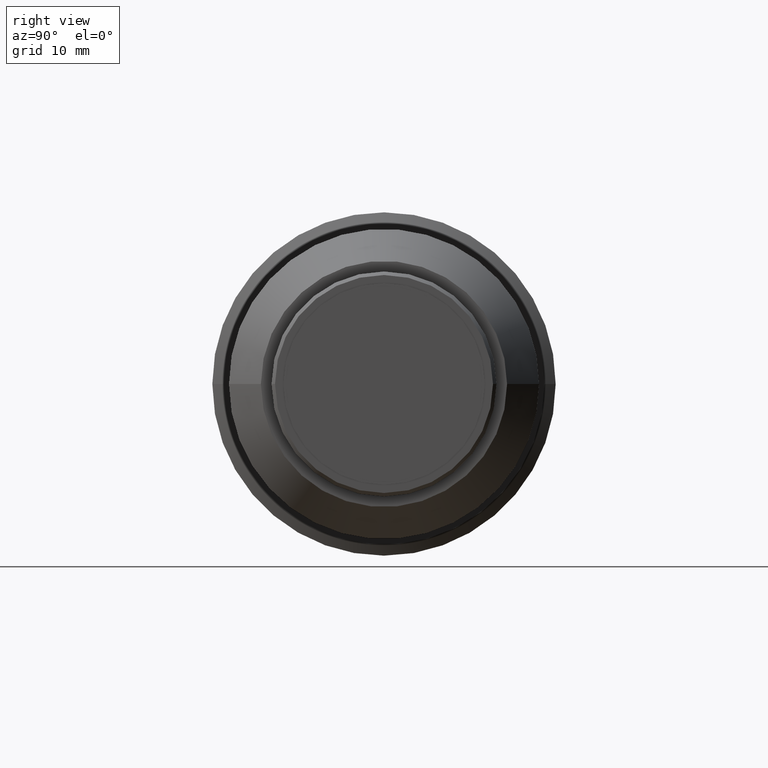
[diagram: clean part render]
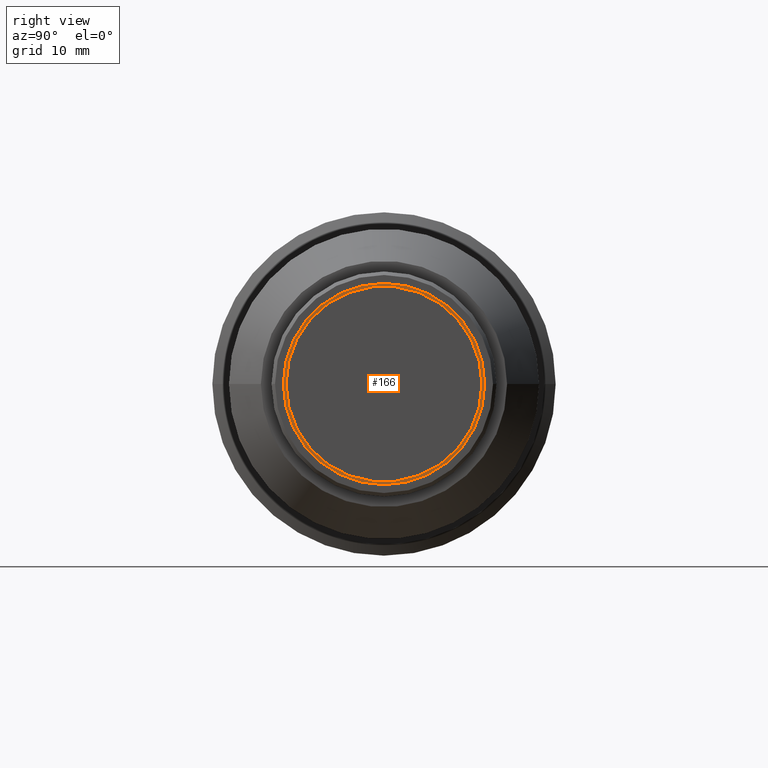
[diagram: same view with one face highlighted and labeled with its STEP entity id]
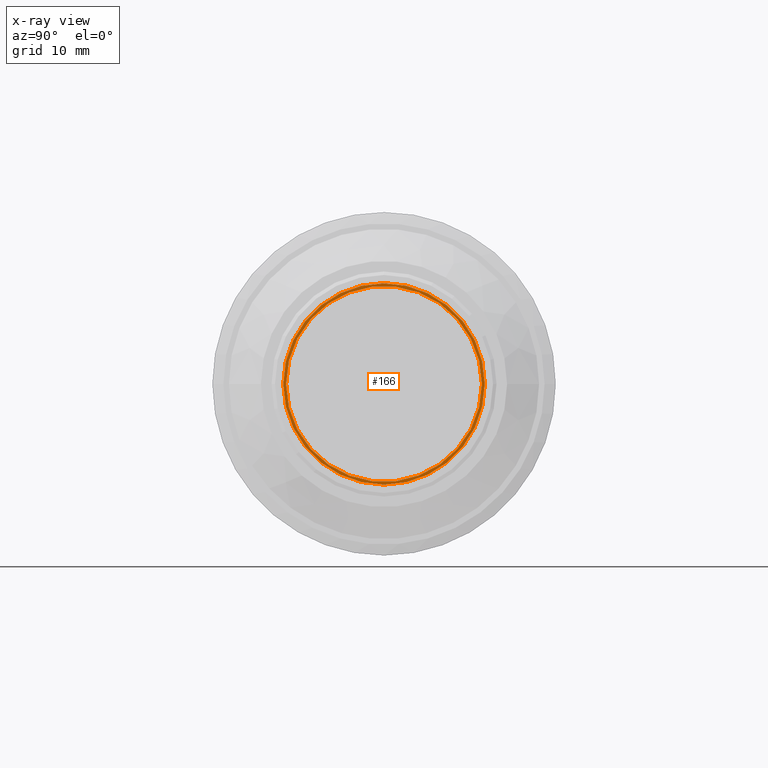
[diagram: x-ray of the same camera — body ghosted, the highlighted face saturated]
A machine part, right view. The second image highlights one B-rep face of the part: STEP entity #166.
The next image is the same camera in x-ray: the body ghosted, the highlighted face saturated — about 0% of this face is hidden behind the body in this view.
In plain terms, the highlighted planar face has unit normal (1, 0, 0).
Its self-contained STEP definition (entity closure, byte-faithful):
#37 = CARTESIAN_POINT ( 'NONE',  ( -0.8000000000000000444, 7.216885809068600189E-15, 0.000000000000000000 ) ) ;
#77 = CARTESIAN_POINT ( 'NONE',  ( -0.8000000000000000444, 7.216885809068600189E-15, 0.000000000000000000 ) ) ;
#81 = CARTESIAN_POINT ( 'NONE',  ( -0.8000000000000000444, 7.216885809068600189E-15, 0.000000000000000000 ) ) ;
#158 = FACE_BOUND ( 'NONE', #1316, .T. ) ;
#166 = ADVANCED_FACE ( 'NONE', ( #1169, #158 ), #567, .T. ) ;
#299 = VERTEX_POINT ( 'NONE', #502 ) ;
#342 = EDGE_CURVE ( 'NONE', #637, #1112, #677, .T. ) ;
#363 = ORIENTED_EDGE ( 'NONE', *, *, #342, .T. ) ;
#391 = DIRECTION ( 'NONE',  ( -1.839198306532294069E-16, 1.000000000000000000, 0.000000000000000000 ) ) ;
#407 = CIRCLE ( 'NONE', #730, 9.092457351945700594 ) ;
#413 = AXIS2_PLACEMENT_3D ( 'NONE', #975, #972, #556 ) ;
#475 = CARTESIAN_POINT ( 'NONE',  ( -0.8000000000000000444, -8.842457351945689936, 1.082888709265728039E-15 ) ) ;
#485 = DIRECTION ( 'NONE',  ( 1.000000000000000000, 1.788628965502094806E-16, 0.000000000000000000 ) ) ;
#502 = CARTESIAN_POINT ( 'NONE',  ( -0.8000000000000000444, 8.842457351945707700, 0.000000000000000000 ) ) ;
#508 = DIRECTION ( 'NONE',  ( -1.788628965502096038E-16, 1.000000000000000000, 0.000000000000000000 ) ) ;
#519 = CARTESIAN_POINT ( 'NONE',  ( -0.8000000000000000444, -9.092457351945689936, 1.113504879244412023E-15 ) ) ;
#520 = ORIENTED_EDGE ( 'NONE', *, *, #1109, .F. ) ;
#556 = DIRECTION ( 'NONE',  ( -1.838806884535414781E-16, 1.000000000000000000, 0.000000000000000000 ) ) ;
#567 = PLANE ( 'NONE',  #413 ) ;
#581 = DIRECTION ( 'NONE',  ( 1.000000000000000000, 1.839198306532294809E-16, 0.000000000000000000 ) ) ;
#637 = VERTEX_POINT ( 'NONE', #917 ) ;
#677 = CIRCLE ( 'NONE', #1085, 9.092457351945700594 ) ;
#698 = EDGE_CURVE ( 'NONE', #1067, #299, #1003, .T. ) ;
#730 = AXIS2_PLACEMENT_3D ( 'NONE', #37, #1253, #1051 ) ;
#771 = CIRCLE ( 'NONE', #1058, 8.842457351945700594 ) ;
#799 = EDGE_CURVE ( 'NONE', #1112, #637, #407, .T. ) ;
#865 = EDGE_LOOP ( 'NONE', ( #363, #1053 ) ) ;
#917 = CARTESIAN_POINT ( 'NONE',  ( -0.8000000000000000444, 9.092457351945709476, 0.000000000000000000 ) ) ;
#972 = DIRECTION ( 'NONE',  ( 1.000000000000000000, 1.838806884535414781E-16, 0.000000000000000000 ) ) ;
#975 = CARTESIAN_POINT ( 'NONE',  ( -0.8000000000000000444, 9.092457351945709476, 0.000000000000000000 ) ) ;
#1003 = CIRCLE ( 'NONE', #1175, 8.842457351945700594 ) ;
#1008 = ORIENTED_EDGE ( 'NONE', *, *, #698, .F. ) ;
#1051 = DIRECTION ( 'NONE',  ( -1.788628965502096038E-16, 1.000000000000000000, 0.000000000000000000 ) ) ;
#1053 = ORIENTED_EDGE ( 'NONE', *, *, #799, .T. ) ;
#1058 = AXIS2_PLACEMENT_3D ( 'NONE', #1189, #581, #1297 ) ;
#1067 = VERTEX_POINT ( 'NONE', #475 ) ;
#1085 = AXIS2_PLACEMENT_3D ( 'NONE', #81, #485, #508 ) ;
#1109 = EDGE_CURVE ( 'NONE', #299, #1067, #771, .T. ) ;
#1112 = VERTEX_POINT ( 'NONE', #519 ) ;
#1169 = FACE_OUTER_BOUND ( 'NONE', #865, .T. ) ;
#1175 = AXIS2_PLACEMENT_3D ( 'NONE', #77, #1208, #391 ) ;
#1189 = CARTESIAN_POINT ( 'NONE',  ( -0.8000000000000000444, 7.216885809068600189E-15, 0.000000000000000000 ) ) ;
#1208 = DIRECTION ( 'NONE',  ( 1.000000000000000000, 1.839198306532294809E-16, 0.000000000000000000 ) ) ;
#1253 = DIRECTION ( 'NONE',  ( 1.000000000000000000, 1.788628965502094806E-16, 0.000000000000000000 ) ) ;
#1297 = DIRECTION ( 'NONE',  ( -1.839198306532294069E-16, 1.000000000000000000, 0.000000000000000000 ) ) ;
#1316 = EDGE_LOOP ( 'NONE', ( #520, #1008 ) ) ;